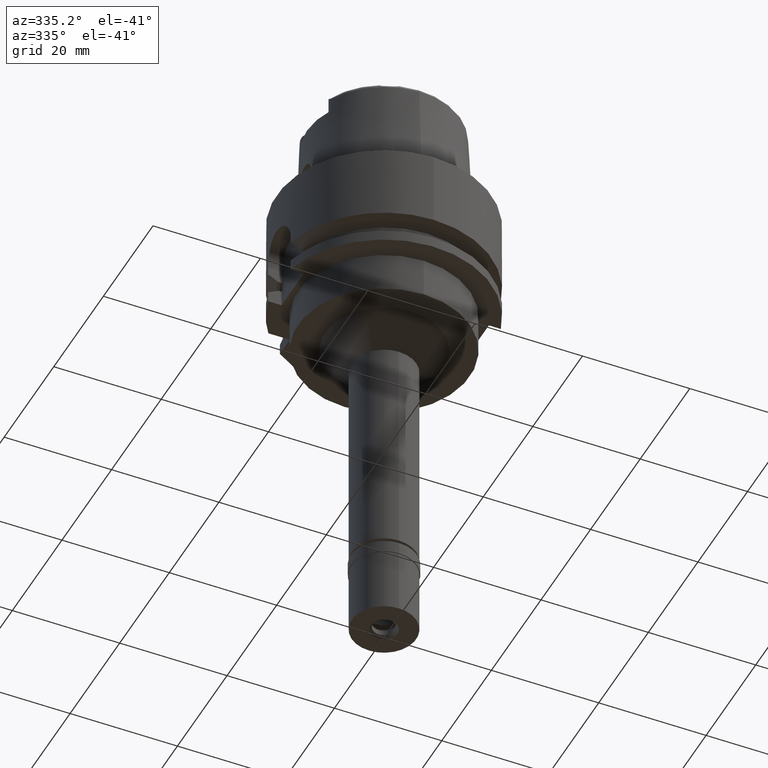
[diagram: clean part render]
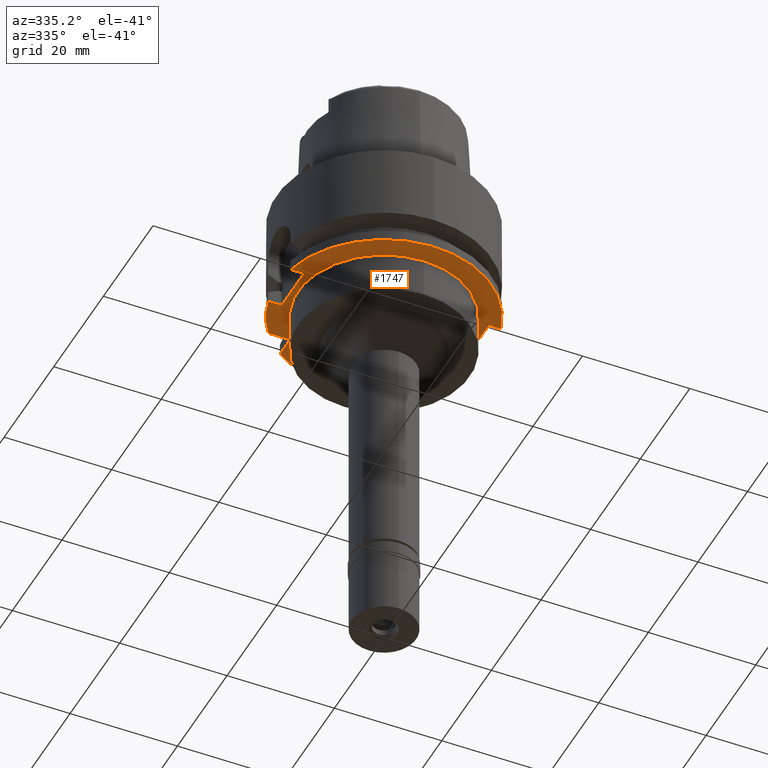
[diagram: same view with one face highlighted and labeled with its STEP entity id]
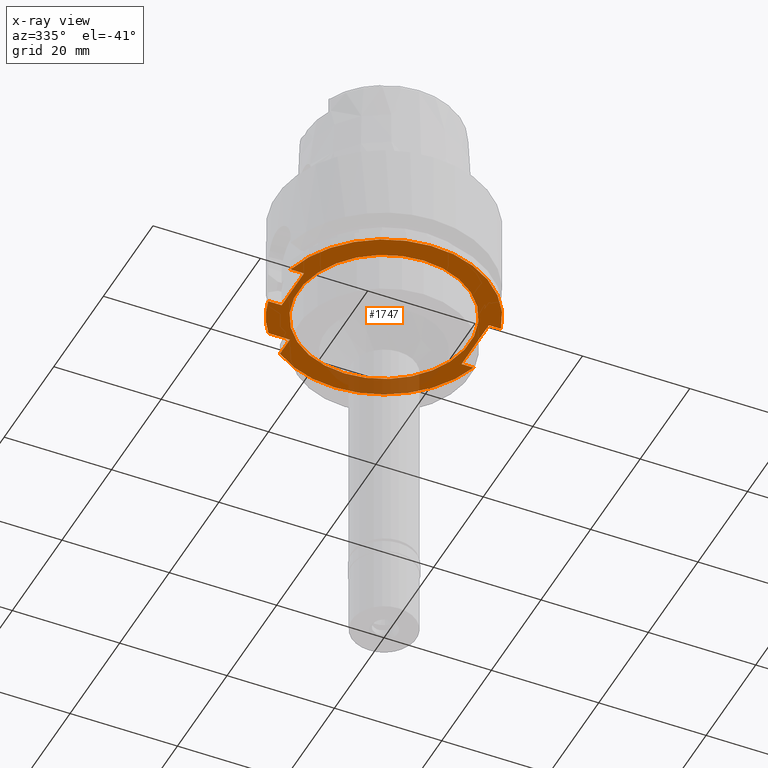
[diagram: x-ray of the same camera — body ghosted, the highlighted face saturated]
A machine part, auxiliary view. The second image highlights one B-rep face of the part: STEP entity #1747.
The next image is the same camera in x-ray: the body ghosted, the highlighted face saturated — about 16% of this face is hidden behind the body in this view.
In plain terms, the highlighted planar face has unit normal (0, 0, 1).
Its self-contained STEP definition (entity closure, byte-faithful):
#4 = CARTESIAN_POINT ( 'NONE',  ( 0.0000000000000000000, 0.0000000000000000000, -20.00000000000000000 ) ) ;
#53 = CIRCLE ( 'NONE', #1491, 20.00000000000000000 ) ;
#54 = CARTESIAN_POINT ( 'NONE',  ( 17.00000000000000000, -5.500000000000000000, -20.00000000000000000 ) ) ;
#61 = CARTESIAN_POINT ( 'NONE',  ( 0.0000000000000000000, 0.0000000000000000000, -20.00000000000000000 ) ) ;
#71 = EDGE_CURVE ( 'NONE', #3564, #1936, #3749, .T. ) ;
#154 = PLANE ( 'NONE',  #394 ) ;
#289 = DIRECTION ( 'NONE',  ( -1.000000000000000000, 1.449839272533000158E-13, 0.0000000000000000000 ) ) ;
#311 = CARTESIAN_POINT ( 'NONE',  ( 19.22888452303000051, -5.500000000000000000, -20.00000000000000000 ) ) ;
#373 = ORIENTED_EDGE ( 'NONE', *, *, #3960, .F. ) ;
#379 = CARTESIAN_POINT ( 'NONE',  ( 19.22888452303000051, 5.500000000000000000, -20.00000000000000000 ) ) ;
#394 = AXIS2_PLACEMENT_3D ( 'NONE', #1422, #2650, #5083 ) ;
#397 = DIRECTION ( 'NONE',  ( 0.0000000000000000000, -1.000000000000000000, 0.0000000000000000000 ) ) ;
#398 = EDGE_CURVE ( 'NONE', #2736, #3564, #4857, .T. ) ;
#420 = AXIS2_PLACEMENT_3D ( 'NONE', #1202, #2840, #2618 ) ;
#623 = EDGE_CURVE ( 'NONE', #1664, #2974, #1274, .T. ) ;
#751 = DIRECTION ( 'NONE',  ( 0.0000000000000000000, -1.000000000000000000, 0.0000000000000000000 ) ) ;
#801 = VECTOR ( 'NONE', #2361, 1000.000000000000000 ) ;
#891 = EDGE_CURVE ( 'NONE', #2974, #5151, #53, .T. ) ;
#896 = VECTOR ( 'NONE', #3774, 1000.000000000000000 ) ;
#976 = FACE_OUTER_BOUND ( 'NONE', #3338, .T. ) ;
#1013 = ORIENTED_EDGE ( 'NONE', *, *, #1158, .T. ) ;
#1032 = CIRCLE ( 'NONE', #3711, 16.00000000000000000 ) ;
#1086 = EDGE_CURVE ( 'NONE', #3469, #5151, #3170, .T. ) ;
#1120 = CARTESIAN_POINT ( 'NONE',  ( -17.00000000000000000, 4.500000000000000000, -20.00000000000000000 ) ) ;
#1121 = VECTOR ( 'NONE', #4406, 1000.000000000000000 ) ;
#1158 = EDGE_CURVE ( 'NONE', #3429, #1210, #3352, .T. ) ;
#1165 = VECTOR ( 'NONE', #289, 1000.000000000000000 ) ;
#1202 = CARTESIAN_POINT ( 'NONE',  ( 0.0000000000000000000, 0.0000000000000000000, -20.00000000000000000 ) ) ;
#1210 = VERTEX_POINT ( 'NONE', #3381 ) ;
#1274 = LINE ( 'NONE', #3714, #4608 ) ;
#1329 = CARTESIAN_POINT ( 'NONE',  ( -19.48717526991000071, 4.500000000000000000, -20.00000000000000000 ) ) ;
#1422 = CARTESIAN_POINT ( 'NONE',  ( 0.0000000000000000000, 0.0000000000000000000, -20.00000000000000000 ) ) ;
#1491 = AXIS2_PLACEMENT_3D ( 'NONE', #4467, #3197, #1907 ) ;
#1517 = ORIENTED_EDGE ( 'NONE', *, *, #1520, .F. ) ;
#1520 = EDGE_CURVE ( 'NONE', #1936, #2405, #2123, .T. ) ;
#1558 = ORIENTED_EDGE ( 'NONE', *, *, #5032, .T. ) ;
#1586 = LINE ( 'NONE', #2425, #1121 ) ;
#1664 = VERTEX_POINT ( 'NONE', #2462 ) ;
#1747 = ADVANCED_FACE ( 'NONE', ( #976, #4284 ), #154, .F. ) ;
#1774 = ORIENTED_EDGE ( 'NONE', *, *, #4771, .F. ) ;
#1789 = DIRECTION ( 'NONE',  ( 0.0000000000000000000, 0.0000000000000000000, -1.000000000000000000 ) ) ;
#1907 = DIRECTION ( 'NONE',  ( -0.8000000000000000444, 0.5999999999999999778, 0.0000000000000000000 ) ) ;
#1936 = VERTEX_POINT ( 'NONE', #311 ) ;
#1969 = DIRECTION ( 'NONE',  ( 0.0000000000000000000, -1.000000000000000000, 0.0000000000000000000 ) ) ;
#2123 = LINE ( 'NONE', #2897, #896 ) ;
#2132 = VERTEX_POINT ( 'NONE', #2276 ) ;
#2273 = VERTEX_POINT ( 'NONE', #3238 ) ;
#2276 = CARTESIAN_POINT ( 'NONE',  ( 0.0000000000000000000, 16.00000000000000000, -20.00000000000000000 ) ) ;
#2291 = ORIENTED_EDGE ( 'NONE', *, *, #3866, .T. ) ;
#2361 = DIRECTION ( 'NONE',  ( -1.000000000000000000, -1.449839272533000158E-13, 0.0000000000000000000 ) ) ;
#2405 = VERTEX_POINT ( 'NONE', #54 ) ;
#2425 = CARTESIAN_POINT ( 'NONE',  ( -12.00000000000000000, 12.00000000000000000, -20.00000000000000000 ) ) ;
#2436 = VECTOR ( 'NONE', #4184, 1000.000000000000000 ) ;
#2447 = CARTESIAN_POINT ( 'NONE',  ( -17.00000000000000000, 4.500000000000000000, -20.00000000000000000 ) ) ;
#2462 = CARTESIAN_POINT ( 'NONE',  ( -12.00000000000000000, 12.00000000000000000, -20.00000000000000000 ) ) ;
#2565 = VECTOR ( 'NONE', #751, 1000.000000000000000 ) ;
#2618 = DIRECTION ( 'NONE',  ( 0.0000000000000000000, 1.000000000000000000, 0.0000000000000000000 ) ) ;
#2650 = DIRECTION ( 'NONE',  ( 0.0000000000000000000, 0.0000000000000000000, 1.000000000000000000 ) ) ;
#2711 = ORIENTED_EDGE ( 'NONE', *, *, #398, .F. ) ;
#2736 = VERTEX_POINT ( 'NONE', #2761 ) ;
#2761 = CARTESIAN_POINT ( 'NONE',  ( -17.00000000000000000, -4.500000000000000000, -20.00000000000000000 ) ) ;
#2808 = CIRCLE ( 'NONE', #2984, 16.00000000000000000 ) ;
#2821 = DIRECTION ( 'NONE',  ( 0.0000000000000000000, 0.0000000000000000000, -1.000000000000000000 ) ) ;
#2840 = DIRECTION ( 'NONE',  ( 0.0000000000000000000, 0.0000000000000000000, 1.000000000000000000 ) ) ;
#2897 = CARTESIAN_POINT ( 'NONE',  ( 19.22888452303000051, -5.500000000000000000, -20.00000000000000000 ) ) ;
#2904 = VERTEX_POINT ( 'NONE', #4727 ) ;
#2974 = VERTEX_POINT ( 'NONE', #3708 ) ;
#2984 = AXIS2_PLACEMENT_3D ( 'NONE', #61, #1789, #3432 ) ;
#3161 = EDGE_CURVE ( 'NONE', #2132, #2904, #2808, .T. ) ;
#3170 = LINE ( 'NONE', #1120, #801 ) ;
#3197 = DIRECTION ( 'NONE',  ( 0.0000000000000000000, 0.0000000000000000000, 1.000000000000000000 ) ) ;
#3203 = ORIENTED_EDGE ( 'NONE', *, *, #1086, .T. ) ;
#3233 = DIRECTION ( 'NONE',  ( 0.0000000000000000000, 0.0000000000000000000, 1.000000000000000000 ) ) ;
#3238 = CARTESIAN_POINT ( 'NONE',  ( -12.00000000000000000, 16.00000000000000000, -20.00000000000000000 ) ) ;
#3269 = DIRECTION ( 'NONE',  ( 0.0000000000000000000, -1.000000000000000000, 0.0000000000000000000 ) ) ;
#3338 = EDGE_LOOP ( 'NONE', ( #373, #1013, #2291, #1517, #4436, #2711, #4008, #3203, #4036, #3351, #1558 ) ) ;
#3351 = ORIENTED_EDGE ( 'NONE', *, *, #623, .F. ) ;
#3352 = LINE ( 'NONE', #5007, #2436 ) ;
#3360 = VECTOR ( 'NONE', #397, 1000.000000000000000 ) ;
#3375 = EDGE_LOOP ( 'NONE', ( #3837, #1774 ) ) ;
#3381 = CARTESIAN_POINT ( 'NONE',  ( 17.00000000000000000, 5.500000000000000000, -20.00000000000000000 ) ) ;
#3429 = VERTEX_POINT ( 'NONE', #379 ) ;
#3432 = DIRECTION ( 'NONE',  ( 0.0000000000000000000, 1.000000000000000000, 0.0000000000000000000 ) ) ;
#3469 = VERTEX_POINT ( 'NONE', #2447 ) ;
#3564 = VERTEX_POINT ( 'NONE', #4179 ) ;
#3585 = CARTESIAN_POINT ( 'NONE',  ( -17.00000000000000000, -4.500000000000000000, -20.00000000000000000 ) ) ;
#3628 = CARTESIAN_POINT ( 'NONE',  ( 0.0000000000000000000, 0.0000000000000000000, -20.00000000000000000 ) ) ;
#3693 = LINE ( 'NONE', #5249, #2565 ) ;
#3708 = CARTESIAN_POINT ( 'NONE',  ( -16.00000000000000000, 12.00000000000000000, -20.00000000000000000 ) ) ;
#3711 = AXIS2_PLACEMENT_3D ( 'NONE', #3628, #2821, #3269 ) ;
#3714 = CARTESIAN_POINT ( 'NONE',  ( -12.00000000000000000, 12.00000000000000000, -20.00000000000000000 ) ) ;
#3749 = CIRCLE ( 'NONE', #4774, 20.00000000000000000 ) ;
#3766 = DIRECTION ( 'NONE',  ( -1.000000000000000000, 0.0000000000000000000, 0.0000000000000000000 ) ) ;
#3774 = DIRECTION ( 'NONE',  ( -1.000000000000000000, -2.191670881949000037E-14, 0.0000000000000000000 ) ) ;
#3801 = EDGE_CURVE ( 'NONE', #3469, #2736, #3693, .T. ) ;
#3837 = ORIENTED_EDGE ( 'NONE', *, *, #3161, .F. ) ;
#3866 = EDGE_CURVE ( 'NONE', #1210, #2405, #4592, .T. ) ;
#3960 = EDGE_CURVE ( 'NONE', #3429, #2273, #4808, .T. ) ;
#4008 = ORIENTED_EDGE ( 'NONE', *, *, #3801, .F. ) ;
#4036 = ORIENTED_EDGE ( 'NONE', *, *, #891, .F. ) ;
#4044 = CARTESIAN_POINT ( 'NONE',  ( 17.00000000000000000, 5.500000000000000000, -20.00000000000000000 ) ) ;
#4179 = CARTESIAN_POINT ( 'NONE',  ( -19.48717526991000071, -4.500000000000000000, -20.00000000000000000 ) ) ;
#4184 = DIRECTION ( 'NONE',  ( -1.000000000000000000, 2.550307935358999985E-14, 0.0000000000000000000 ) ) ;
#4284 = FACE_BOUND ( 'NONE', #3375, .T. ) ;
#4406 = DIRECTION ( 'NONE',  ( 0.0000000000000000000, 1.000000000000000000, 0.0000000000000000000 ) ) ;
#4436 = ORIENTED_EDGE ( 'NONE', *, *, #71, .F. ) ;
#4467 = CARTESIAN_POINT ( 'NONE',  ( 0.0000000000000000000, 0.0000000000000000000, -20.00000000000000000 ) ) ;
#4592 = LINE ( 'NONE', #4044, #3360 ) ;
#4608 = VECTOR ( 'NONE', #3766, 1000.000000000000000 ) ;
#4727 = CARTESIAN_POINT ( 'NONE',  ( 0.0000000000000000000, -16.00000000000000000, -20.00000000000000000 ) ) ;
#4771 = EDGE_CURVE ( 'NONE', #2904, #2132, #1032, .T. ) ;
#4774 = AXIS2_PLACEMENT_3D ( 'NONE', #4, #3233, #1969 ) ;
#4808 = CIRCLE ( 'NONE', #420, 20.00000000000000000 ) ;
#4857 = LINE ( 'NONE', #3585, #1165 ) ;
#5007 = CARTESIAN_POINT ( 'NONE',  ( 19.22888452303000051, 5.500000000000000000, -20.00000000000000000 ) ) ;
#5032 = EDGE_CURVE ( 'NONE', #1664, #2273, #1586, .T. ) ;
#5083 = DIRECTION ( 'NONE',  ( 1.000000000000000000, 0.0000000000000000000, 0.0000000000000000000 ) ) ;
#5151 = VERTEX_POINT ( 'NONE', #1329 ) ;
#5249 = CARTESIAN_POINT ( 'NONE',  ( -17.00000000000000000, 4.500000000000000000, -20.00000000000000000 ) ) ;